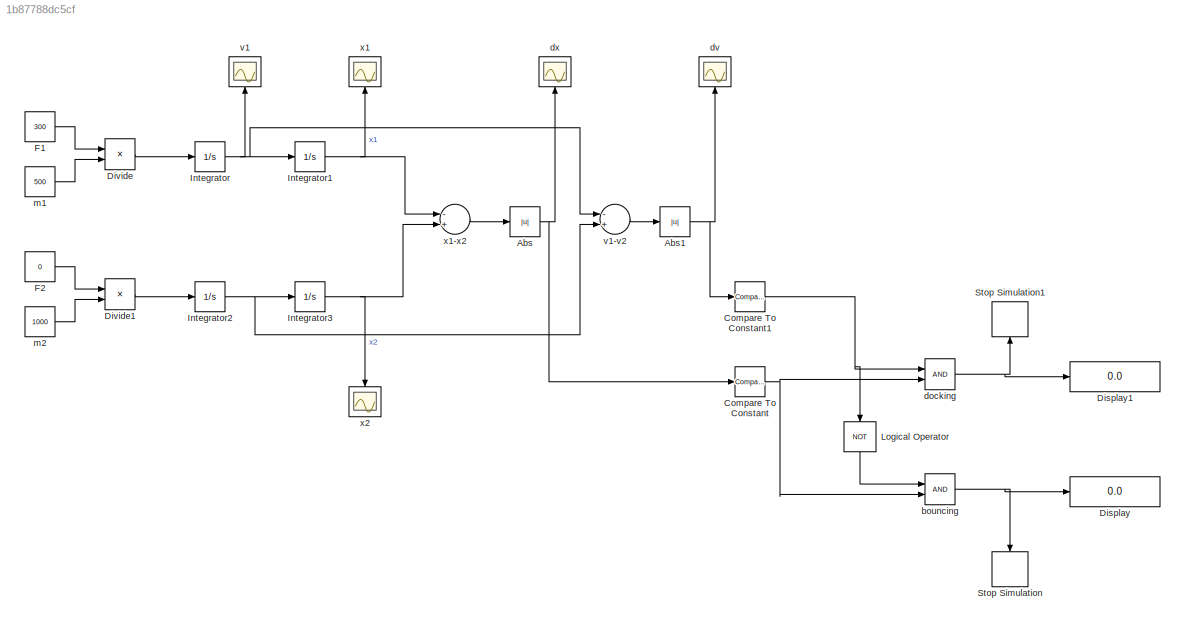
MODEL slx_1b87788dc5cf
KIND model
BLOCK [Abs] Abs
  SaturateOnIntegerOverflow = off
BLOCK [Abs] Abs1
  SaturateOnIntegerOverflow = off
BLOCK [Reference] Compare To Constant  REF=simulink/Logic and Bit
Operations/Compare
To Constant
  OutDataTypeStr = boolean
  Ports = [1, 1]
  SourceBlock = simulink/Logic and Bit\nOperations/Compare\nTo Constant
  SourceType = Compare To Constant
  ZeroCross = on
  const = 5
  relop = <
BLOCK [Reference] Compare To Constant1  REF=simulink/Logic and Bit
Operations/Compare
To Constant
  OutDataTypeStr = boolean
  Ports = [1, 1]
  SourceBlock = simulink/Logic and Bit\nOperations/Compare\nTo Constant
  SourceType = Compare To Constant
  ZeroCross = on
  const = 2
  relop = <=
BLOCK [Display] Display
  Decimation = 1
  Ports = [1]
BLOCK [Display] Display1
  Decimation = 1
  Ports = [1]
BLOCK [Product] Divide
  InputSameDT = off
  Inputs = */
  OutDataTypeStr = Inherit: Inherit via internal rule
  Ports = [2, 1]
  RndMeth = Floor
  SaturateOnIntegerOverflow = off
BLOCK [Product] Divide1
  InputSameDT = off
  Inputs = */
  OutDataTypeStr = Inherit: Inherit via internal rule
  Ports = [2, 1]
  RndMeth = Floor
  SaturateOnIntegerOverflow = off
BLOCK [Constant] F1
  Value = 300
BLOCK [Constant] F2
  Value = 0
BLOCK [Integrator] Integrator
  Ports = [1, 1]
BLOCK [Integrator] Integrator1
  Ports = [1, 1]
BLOCK [Integrator] Integrator2
  Ports = [1, 1]
BLOCK [Integrator] Integrator3
  InitialCondition = 100
  Ports = [1, 1]
BLOCK [Logic] Logical Operator
  AllPortsSameDT = off
  Operator = NOT
  OutDataTypeStr = boolean
  Ports = [1, 1]
BLOCK [Stop] Stop Simulation
BLOCK [Stop] Stop Simulation1
BLOCK [Logic] bouncing
  AllPortsSameDT = off
  OutDataTypeStr = boolean
  Ports = [2, 1]
BLOCK [Logic] docking
  AllPortsSameDT = off
  OutDataTypeStr = boolean
  Ports = [2, 1]
BLOCK [Scope] dv
  DataFormat = StructureWithTime
  Floating = off
  NumInputPorts = 1
  Ports = [1]
  SampleTime = 0
  SaveName = dv
  SaveToWorkspace = on
  ShowLegends = off
  TimeRange = 55
  YMax = 100
  YMin = -1000
  ZoomMode = yonly
BLOCK [Scope] dx
  DataFormat = StructureWithTime
  Floating = off
  NumInputPorts = 1
  Ports = [1]
  SampleTime = 0
  SaveName = dx
  SaveToWorkspace = on
  ShowLegends = off
  YMax = 50
  YMin = 5
  ZoomMode = yonly
BLOCK [Constant] m1
  Value = 500
BLOCK [Constant] m2
  Value = 1000
BLOCK [Scope] v1
  DataFormat = StructureWithTime
  Floating = off
  NumInputPorts = 1
  Ports = [1]
  SampleTime = 0
  SaveName = V1
  SaveToWorkspace = on
  ShowLegends = off
  TimeRange = 50
  YMax = 9
  YMin = 0
  ZoomMode = yonly
BLOCK [Sum] v1-v2
  InputSameDT = off
  Inputs = -+
  OutDataTypeStr = Inherit: Inherit via internal rule
  Ports = [2, 1]
  SaturateOnIntegerOverflow = off
BLOCK [Scope] x1
  DataFormat = StructureWithTime
  Floating = off
  NumInputPorts = 1
  Ports = [1]
  SampleTime = 0
  SaveName = x1
  SaveToWorkspace = on
  ShowLegends = off
  ZoomMode = xonly
BLOCK [Sum] x1-x2
  InputSameDT = off
  Inputs = -+
  OutDataTypeStr = Inherit: Inherit via internal rule
  Ports = [2, 1]
  SaturateOnIntegerOverflow = off
BLOCK [Scope] x2
  DataFormat = StructureWithTime
  Floating = off
  NumInputPorts = 1
  Ports = [1]
  SampleTime = 0
  SaveName = x2
  SaveToWorkspace = on
  ShowLegends = off
NET Abs1:1 -> Compare To Constant1:1, dv:1
NET Abs:1 -> Compare To Constant:1, dx:1
NET Compare To Constant1:1 -> Logical Operator:1, docking:1
NET Compare To Constant:1 -> bouncing:2, docking:2
LINE Divide1:1 -> Integrator2:1
LINE Divide:1 -> Integrator:1
LINE F1:1 -> Divide:1
LINE F2:1 -> Divide1:1
NET Integrator1:1 -> x1-x2:1, x1:1
NET Integrator2:1 -> Integrator3:1, v1-v2:2
NET Integrator3:1 -> x1-x2:2, x2:1
NET Integrator:1 -> Integrator1:1, v1-v2:1, v1:1
LINE Logical Operator:1 -> bouncing:1
NET bouncing:1 -> Display:1, Stop Simulation:1
NET docking:1 -> Display1:1, Stop Simulation1:1
LINE m1:1 -> Divide:2
LINE m2:1 -> Divide1:2
LINE v1-v2:1 -> Abs1:1
LINE x1-x2:1 -> Abs:1
note: NET lines group one-source signal fan-out (src -> all destinations, sorted); 1:1 wires keep LINE
